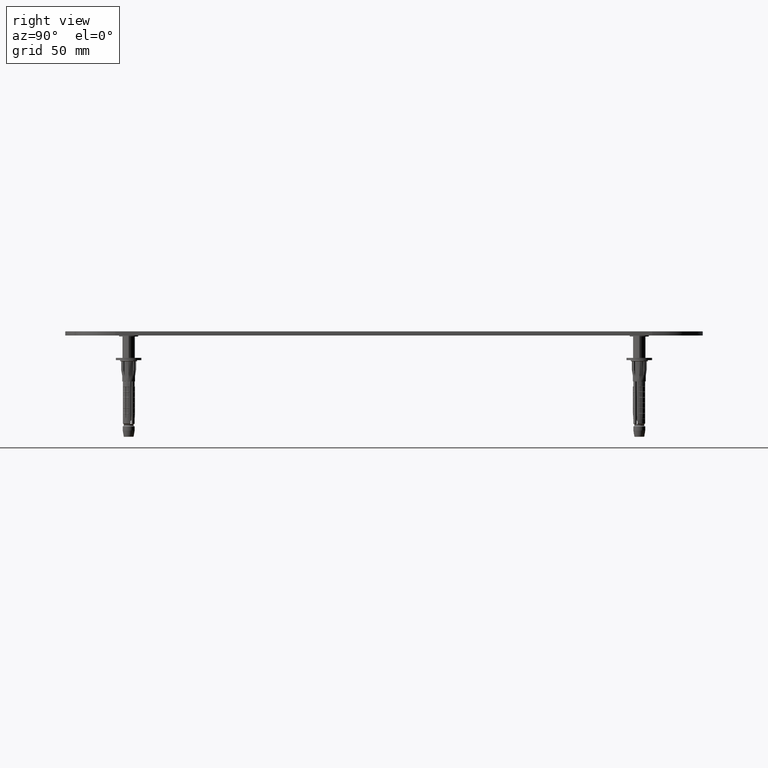
[diagram: clean part render]
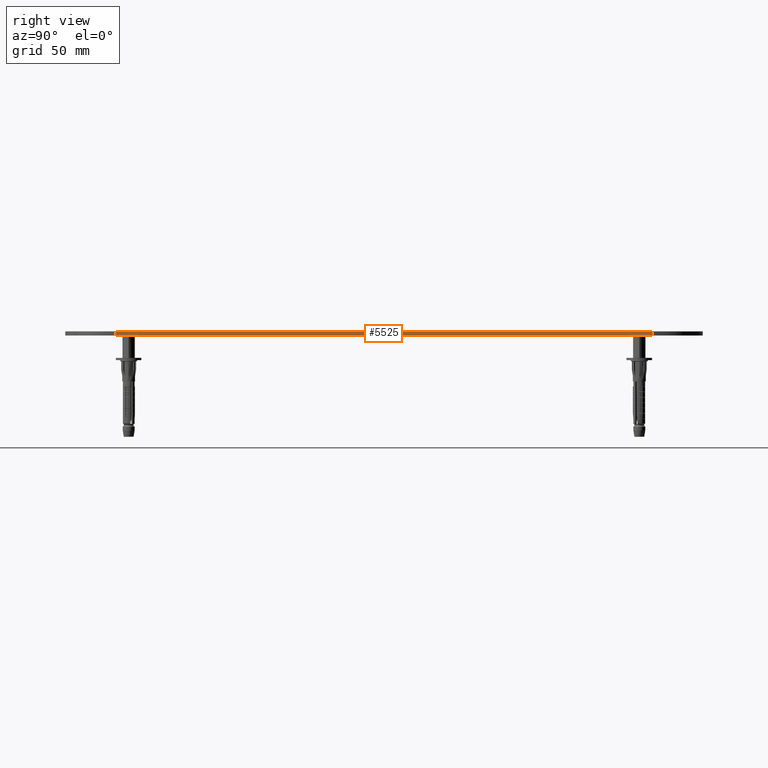
[diagram: same view with one face highlighted and labeled with its STEP entity id]
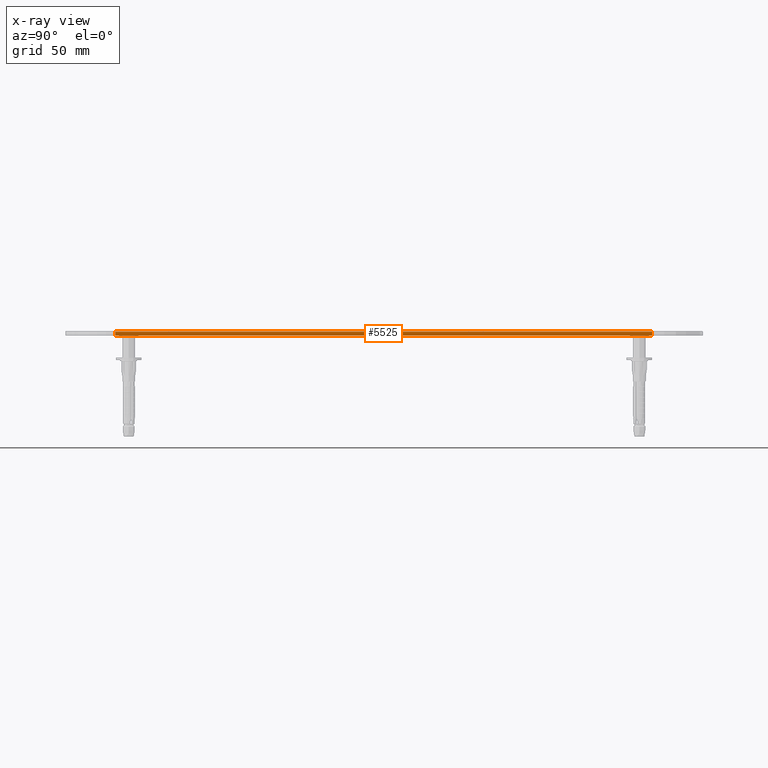
[diagram: x-ray of the same camera — body ghosted, the highlighted face saturated]
A machine part, right view. The second image highlights one B-rep face of the part: STEP entity #5525.
The next image is the same camera in x-ray: the body ghosted, the highlighted face saturated — about 0% of this face is hidden behind the body in this view.
In plain terms, the highlighted planar face has unit normal (-1, -0, 0).
Its self-contained STEP definition (entity closure, byte-faithful):
#737 = FACE_OUTER_BOUND ( 'NONE', #12459, .T. ) ;
#816 = ORIENTED_EDGE ( 'NONE', *, *, #31690, .F. ) ;
#2102 = LINE ( 'NONE', #10043, #21144 ) ;
#2611 = CARTESIAN_POINT ( 'NONE',  ( -18.99999999999999645, 23.68448275862068186, 0.000000000000000000 ) ) ;
#3777 = ORIENTED_EDGE ( 'NONE', *, *, #26465, .T. ) ;
#5525 = ADVANCED_FACE ( 'NONE', ( #737 ), #36954, .F. ) ;
#6033 = DIRECTION ( 'NONE',  ( 5.500172149356228194E-17, -1.000000000000000000, -0.000000000000000000 ) ) ;
#7949 = VERTEX_POINT ( 'NONE', #17195 ) ;
#8808 = VECTOR ( 'NONE', #18877, 1000.000000000000000 ) ;
#8902 = CARTESIAN_POINT ( 'NONE',  ( -19.00000000000001066, 275.9999999999999432, 2.000000000000000000 ) ) ;
#9468 = LINE ( 'NONE', #17582, #37739 ) ;
#9939 = ORIENTED_EDGE ( 'NONE', *, *, #29822, .T. ) ;
#10043 = CARTESIAN_POINT ( 'NONE',  ( -19.00000000000001066, 275.9999999999999432, 0.000000000000000000 ) ) ;
#10840 = VERTEX_POINT ( 'NONE', #27175 ) ;
#11657 = VECTOR ( 'NONE', #13948, 1000.000000000000000 ) ;
#12459 = EDGE_LOOP ( 'NONE', ( #816, #3777, #9939, #35450 ) ) ;
#13510 = LINE ( 'NONE', #14203, #11657 ) ;
#13948 = DIRECTION ( 'NONE',  ( -0.000000000000000000, -0.000000000000000000, -1.000000000000000000 ) ) ;
#14203 = CARTESIAN_POINT ( 'NONE',  ( -18.99999999999999645, 23.68448275862068186, 2.000000000000000000 ) ) ;
#17195 = CARTESIAN_POINT ( 'NONE',  ( -18.99999999999999645, 23.68448275862068186, 1.750000000000000000 ) ) ;
#17582 = CARTESIAN_POINT ( 'NONE',  ( -19.00000000000001066, 275.9999999999999432, 1.750000000000000000 ) ) ;
#18877 = DIRECTION ( 'NONE',  ( -0.000000000000000000, -0.000000000000000000, -1.000000000000000000 ) ) ;
#19364 = DIRECTION ( 'NONE',  ( -1.000000000000000000, -5.500172149356228194E-17, 0.000000000000000000 ) ) ;
#21144 = VECTOR ( 'NONE', #25195, 1000.000000000000000 ) ;
#24851 = EDGE_CURVE ( 'NONE', #28635, #32334, #2102, .T. ) ;
#25195 = DIRECTION ( 'NONE',  ( -5.500172149356228194E-17, 1.000000000000000000, -0.000000000000000000 ) ) ;
#25298 = CARTESIAN_POINT ( 'NONE',  ( -19.00000000000001066, 275.9999999999999432, 2.000000000000000000 ) ) ;
#26465 = EDGE_CURVE ( 'NONE', #10840, #7949, #9468, .T. ) ;
#27175 = CARTESIAN_POINT ( 'NONE',  ( -19.00000000000001066, 275.9999999999999432, 1.750000000000000000 ) ) ;
#28425 = DIRECTION ( 'NONE',  ( 5.500172149356228194E-17, -1.000000000000000000, 0.000000000000000000 ) ) ;
#28635 = VERTEX_POINT ( 'NONE', #2611 ) ;
#29684 = LINE ( 'NONE', #8902, #8808 ) ;
#29822 = EDGE_CURVE ( 'NONE', #7949, #28635, #13510, .T. ) ;
#31690 = EDGE_CURVE ( 'NONE', #10840, #32334, #29684, .T. ) ;
#32194 = CARTESIAN_POINT ( 'NONE',  ( -19.00000000000001066, 275.9999999999999432, 0.000000000000000000 ) ) ;
#32334 = VERTEX_POINT ( 'NONE', #32194 ) ;
#34434 = AXIS2_PLACEMENT_3D ( 'NONE', #25298, #19364, #28425 ) ;
#35450 = ORIENTED_EDGE ( 'NONE', *, *, #24851, .T. ) ;
#36954 = PLANE ( 'NONE',  #34434 ) ;
#37739 = VECTOR ( 'NONE', #6033, 1000.000000000000000 ) ;